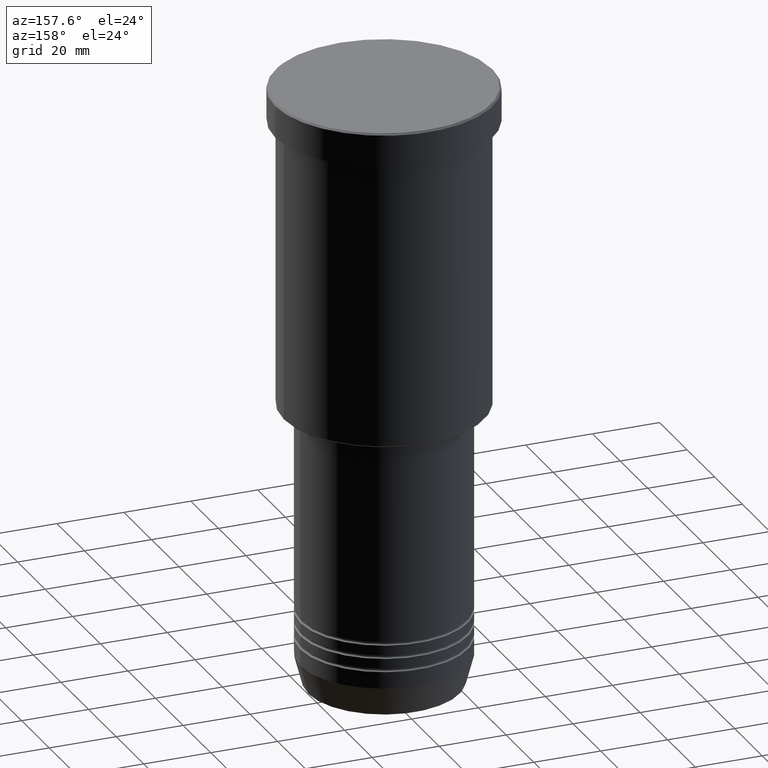
[diagram: clean part render]
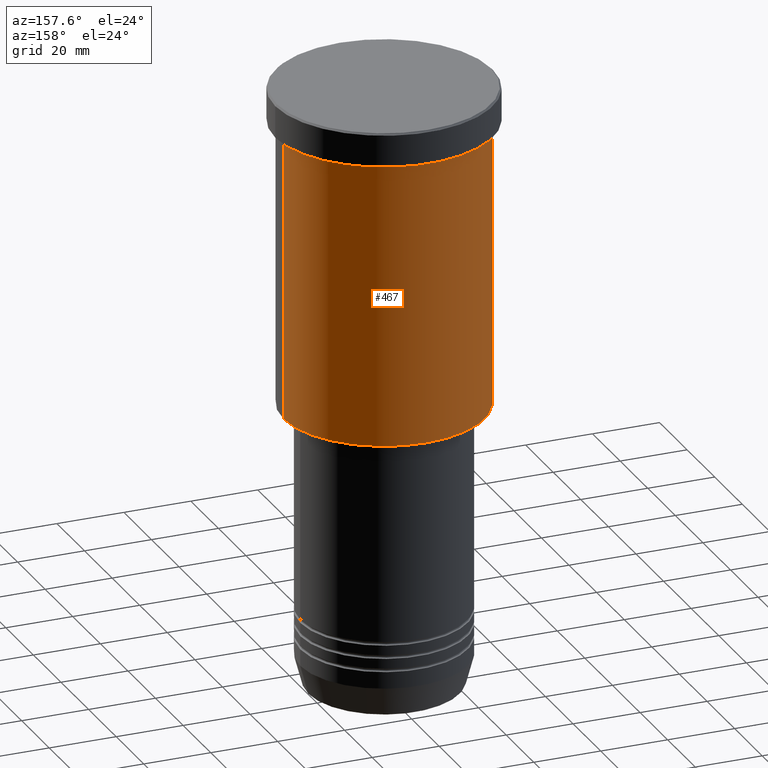
[diagram: same view with one face highlighted and labeled with its STEP entity id]
A machine part, auxiliary view. The second image highlights one B-rep face of the part: STEP entity #467.
In plain terms, the highlighted cylindrical surface (partial cylindrical patch) has radius 30 mm, axis along (-0, -0, 1).
Its self-contained STEP definition (entity closure, byte-faithful):
#89 = ORIENTED_EDGE ( 'NONE', *, *, #201, .T. ) ;
#116 = CYLINDRICAL_SURFACE ( 'NONE', #885, 30.00000000000000000 ) ;
#132 = VERTEX_POINT ( 'NONE', #600 ) ;
#141 = ORIENTED_EDGE ( 'NONE', *, *, #855, .F. ) ;
#179 = DIRECTION ( 'NONE',  ( -0.000000000000000000, -0.000000000000000000, 1.000000000000000000 ) ) ;
#201 = EDGE_CURVE ( 'NONE', #1059, #132, #570, .T. ) ;
#270 = DIRECTION ( 'NONE',  ( 1.000000000000000000, 0.000000000000000000, 0.000000000000000000 ) ) ;
#301 = AXIS2_PLACEMENT_3D ( 'NONE', #426, #805, #957 ) ;
#385 = ORIENTED_EDGE ( 'NONE', *, *, #396, .F. ) ;
#396 = EDGE_CURVE ( 'NONE', #1059, #874, #636, .T. ) ;
#408 = DIRECTION ( 'NONE',  ( 1.000000000000000000, 0.000000000000000000, 0.000000000000000000 ) ) ;
#412 = LINE ( 'NONE', #688, #811 ) ;
#426 = CARTESIAN_POINT ( 'NONE',  ( 0.000000000000000000, 0.000000000000000000, -95.50000000000000000 ) ) ;
#466 = DIRECTION ( 'NONE',  ( -0.000000000000000000, -0.000000000000000000, 1.000000000000000000 ) ) ;
#467 = ADVANCED_FACE ( 'NONE', ( #934 ), #116, .T. ) ;
#485 = CARTESIAN_POINT ( 'NONE',  ( 0.000000000000000000, 0.000000000000000000, 0.000000000000000000 ) ) ;
#496 = DIRECTION ( 'NONE',  ( -0.000000000000000000, -0.000000000000000000, 1.000000000000000000 ) ) ;
#506 = EDGE_CURVE ( 'NONE', #132, #1093, #412, .T. ) ;
#533 = CIRCLE ( 'NONE', #611, 30.00000000000000000 ) ;
#570 = CIRCLE ( 'NONE', #301, 30.00000000000000000 ) ;
#600 = CARTESIAN_POINT ( 'NONE',  ( -30.00000000000000000, 3.673940397442059178E-15, -95.50000000000000000 ) ) ;
#611 = AXIS2_PLACEMENT_3D ( 'NONE', #712, #1082, #270 ) ;
#636 = LINE ( 'NONE', #1027, #740 ) ;
#688 = CARTESIAN_POINT ( 'NONE',  ( -30.00000000000000000, 3.673940397442059178E-15, 0.000000000000000000 ) ) ;
#712 = CARTESIAN_POINT ( 'NONE',  ( 0.000000000000000000, 0.000000000000000000, -10.99999999999999289 ) ) ;
#740 = VECTOR ( 'NONE', #466, 1000.000000000000000 ) ;
#768 = CARTESIAN_POINT ( 'NONE',  ( 30.00000000000000000, 0.000000000000000000, -95.50000000000000000 ) ) ;
#805 = DIRECTION ( 'NONE',  ( -0.000000000000000000, -0.000000000000000000, 1.000000000000000000 ) ) ;
#811 = VECTOR ( 'NONE', #496, 1000.000000000000000 ) ;
#816 = CARTESIAN_POINT ( 'NONE',  ( 30.00000000000000000, 0.000000000000000000, -10.99999999999999289 ) ) ;
#855 = EDGE_CURVE ( 'NONE', #874, #1093, #533, .T. ) ;
#874 = VERTEX_POINT ( 'NONE', #816 ) ;
#885 = AXIS2_PLACEMENT_3D ( 'NONE', #485, #179, #408 ) ;
#934 = FACE_OUTER_BOUND ( 'NONE', #1085, .T. ) ;
#957 = DIRECTION ( 'NONE',  ( -1.000000000000000000, 0.000000000000000000, 0.000000000000000000 ) ) ;
#1027 = CARTESIAN_POINT ( 'NONE',  ( 30.00000000000000000, 0.000000000000000000, 0.000000000000000000 ) ) ;
#1039 = CARTESIAN_POINT ( 'NONE',  ( -30.00000000000000000, 3.673940397442059178E-15, -10.99999999999999289 ) ) ;
#1059 = VERTEX_POINT ( 'NONE', #768 ) ;
#1072 = ORIENTED_EDGE ( 'NONE', *, *, #506, .T. ) ;
#1082 = DIRECTION ( 'NONE',  ( -0.000000000000000000, -0.000000000000000000, 1.000000000000000000 ) ) ;
#1085 = EDGE_LOOP ( 'NONE', ( #89, #1072, #141, #385 ) ) ;
#1093 = VERTEX_POINT ( 'NONE', #1039 ) ;